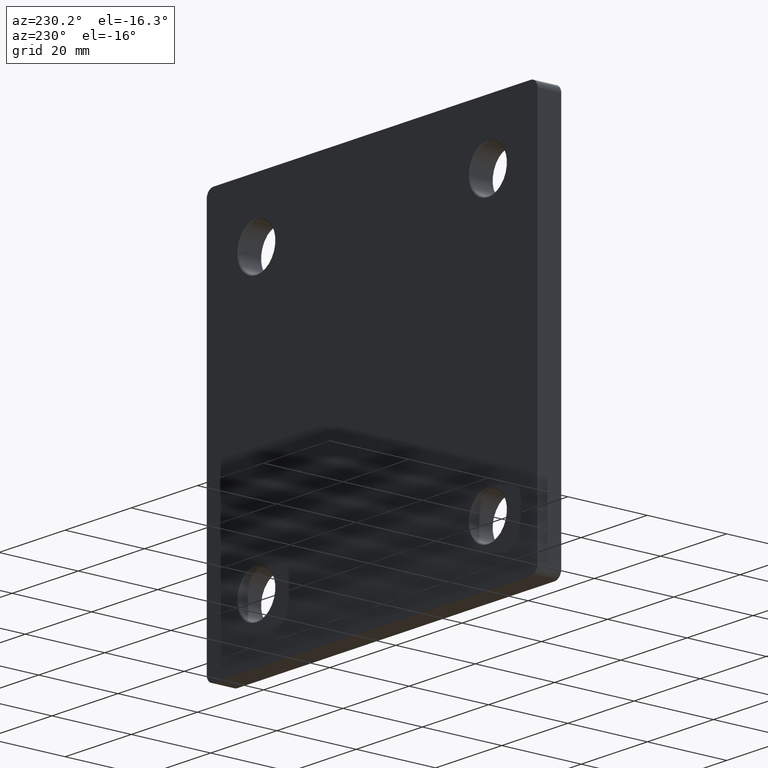
[diagram: clean part render]
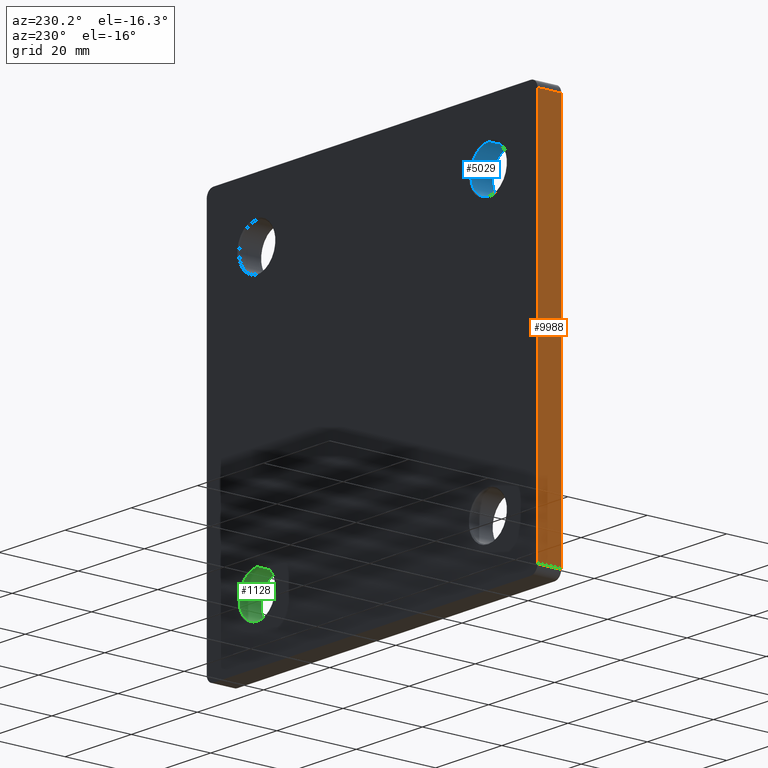
[diagram: same view with three faces highlighted in distinct colors, each labeled with its STEP entity id]
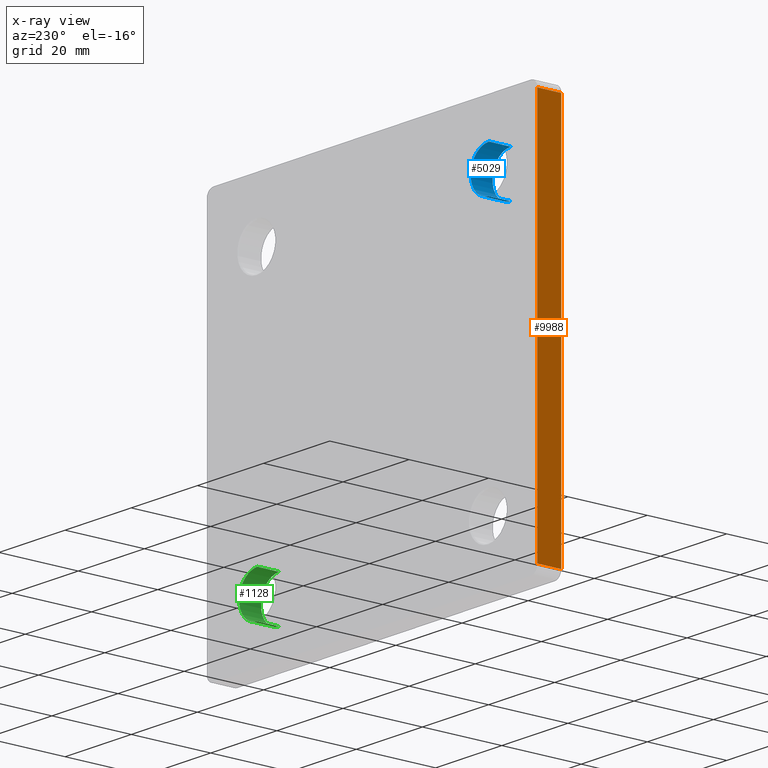
[diagram: x-ray of the same camera — body ghosted, the three highlighted faces saturated]
A machine part, auxiliary view with three faces highlighted in distinct colors.
The next image is the same camera in x-ray (body ghosted, the three faces saturated) — at least one of them is partly hidden behind the body in this view.
Their STEP definitions:

[orange] entity #9988 — the highlighted planar face has unit normal (1, 0, -0).
#30 = ORIENTED_EDGE ( 'NONE', *, *, #9757, .T. ) ;
#650 = CARTESIAN_POINT ( 'NONE',  ( -50.00000000000000000, 0.000000000000000000, -49.99999999999998579 ) ) ;
#711 = CARTESIAN_POINT ( 'NONE',  ( -50.00000000000000000, 6.000000000000000000, -47.99999999999998579 ) ) ;
#774 = EDGE_CURVE ( 'NONE', #8219, #3320, #5610, .T. ) ;
#883 = CARTESIAN_POINT ( 'NONE',  ( -50.00000000000000000, 6.000000000000000000, -49.99999999999998579 ) ) ;
#920 = AXIS2_PLACEMENT_3D ( 'NONE', #883, #7146, #8029 ) ;
#1130 = CARTESIAN_POINT ( 'NONE',  ( -49.99999999999998579, 6.000000000000000000, 48.00000000000001421 ) ) ;
#1136 = CARTESIAN_POINT ( 'NONE',  ( -50.00000000000000000, 6.000000000000000000, -47.99999999999998579 ) ) ;
#1321 = LINE ( 'NONE', #2989, #10551 ) ;
#2206 = ORIENTED_EDGE ( 'NONE', *, *, #2766, .F. ) ;
#2766 = EDGE_CURVE ( 'NONE', #8219, #8316, #6720, .T. ) ;
#2989 = CARTESIAN_POINT ( 'NONE',  ( -49.99999999999998579, 6.000000000000000000, 48.00000000000001421 ) ) ;
#3072 = DIRECTION ( 'NONE',  ( -0.000000000000000000, 1.000000000000000000, -0.000000000000000000 ) ) ;
#3320 = VERTEX_POINT ( 'NONE', #7349 ) ;
#3981 = LINE ( 'NONE', #650, #10852 ) ;
#4329 = VERTEX_POINT ( 'NONE', #8104 ) ;
#4588 = PLANE ( 'NONE',  #920 ) ;
#4641 = CARTESIAN_POINT ( 'NONE',  ( -50.00000000000000000, 6.000000000000000000, -49.99999999999998579 ) ) ;
#4895 = VECTOR ( 'NONE', #9186, 1000.000000000000000 ) ;
#5579 = DIRECTION ( 'NONE',  ( 1.387778780781445676E-16, 0.000000000000000000, 1.000000000000000000 ) ) ;
#5610 = LINE ( 'NONE', #1136, #4895 ) ;
#6106 = ORIENTED_EDGE ( 'NONE', *, *, #774, .T. ) ;
#6720 = LINE ( 'NONE', #4641, #9678 ) ;
#7146 = DIRECTION ( 'NONE',  ( 1.000000000000000000, 0.000000000000000000, -1.387778780781445429E-16 ) ) ;
#7349 = CARTESIAN_POINT ( 'NONE',  ( -50.00000000000000000, 0.000000000000000000, -47.99999999999998579 ) ) ;
#7835 = EDGE_CURVE ( 'NONE', #3320, #4329, #3981, .T. ) ;
#8029 = DIRECTION ( 'NONE',  ( -1.387778780781445429E-16, 0.000000000000000000, -1.000000000000000000 ) ) ;
#8104 = CARTESIAN_POINT ( 'NONE',  ( -49.99999999999998579, 0.000000000000000000, 48.00000000000001421 ) ) ;
#8219 = VERTEX_POINT ( 'NONE', #711 ) ;
#8316 = VERTEX_POINT ( 'NONE', #1130 ) ;
#8372 = ORIENTED_EDGE ( 'NONE', *, *, #7835, .T. ) ;
#9186 = DIRECTION ( 'NONE',  ( 0.000000000000000000, -1.000000000000000000, 0.000000000000000000 ) ) ;
#9678 = VECTOR ( 'NONE', #5579, 1000.000000000000000 ) ;
#9757 = EDGE_CURVE ( 'NONE', #4329, #8316, #1321, .T. ) ;
#9988 = ADVANCED_FACE ( 'NONE', ( #10955 ), #4588, .F. ) ;
#10545 = EDGE_LOOP ( 'NONE', ( #2206, #6106, #8372, #30 ) ) ;
#10551 = VECTOR ( 'NONE', #3072, 1000.000000000000000 ) ;
#10573 = DIRECTION ( 'NONE',  ( 1.387778780781445676E-16, 0.000000000000000000, 1.000000000000000000 ) ) ;
#10852 = VECTOR ( 'NONE', #10573, 1000.000000000000000 ) ;
#10955 = FACE_OUTER_BOUND ( 'NONE', #10545, .T. ) ;

[blue] entity #5029 — the highlighted cylindrical surface (edge-blend (fillet) strip) has radius 5.5 mm, axis along (-0, 1, -0).
#157 = CARTESIAN_POINT ( 'NONE',  ( -35.00000000000000000, 0.2499999999999872047, 29.50000000000000711 ) ) ;
#925 = CARTESIAN_POINT ( 'NONE',  ( -35.00000000000000000, 0.000000000000000000, 40.50000000000000000 ) ) ;
#977 = CARTESIAN_POINT ( 'NONE',  ( -35.00000000000000000, 5.749999999999999112, 35.00000000000000000 ) ) ;
#1243 = CYLINDRICAL_SURFACE ( 'NONE', #1698, 5.499999999999998224 ) ;
#1558 = DIRECTION ( 'NONE',  ( -0.000000000000000000, 1.000000000000000000, -0.000000000000000000 ) ) ;
#1698 = AXIS2_PLACEMENT_3D ( 'NONE', #7764, #1558, #4969 ) ;
#1923 = ORIENTED_EDGE ( 'NONE', *, *, #4749, .T. ) ;
#2142 = LINE ( 'NONE', #4739, #11339 ) ;
#2247 = VECTOR ( 'NONE', #7266, 1000.000000000000000 ) ;
#2659 = DIRECTION ( 'NONE',  ( 0.000000000000000000, 0.000000000000000000, 1.000000000000000000 ) ) ;
#2923 = LINE ( 'NONE', #925, #2247 ) ;
#3408 = EDGE_LOOP ( 'NONE', ( #6370, #8304, #5858, #1923 ) ) ;
#3729 = CIRCLE ( 'NONE', #3837, 5.499999999999998224 ) ;
#3837 = AXIS2_PLACEMENT_3D ( 'NONE', #977, #8051, #2659 ) ;
#4009 = EDGE_CURVE ( 'NONE', #9584, #5014, #2923, .T. ) ;
#4142 = CARTESIAN_POINT ( 'NONE',  ( -35.00000000000000000, 0.2499999999999872047, 35.00000000000000000 ) ) ;
#4174 = VERTEX_POINT ( 'NONE', #11189 ) ;
#4182 = CARTESIAN_POINT ( 'NONE',  ( -35.00000000000000000, 5.749999999999999112, 40.50000000000000000 ) ) ;
#4223 = DIRECTION ( 'NONE',  ( 0.000000000000000000, 0.000000000000000000, 1.000000000000000000 ) ) ;
#4427 = AXIS2_PLACEMENT_3D ( 'NONE', #4142, #9615, #4223 ) ;
#4739 = CARTESIAN_POINT ( 'NONE',  ( -35.00000000000000000, 0.000000000000000000, 29.50000000000000711 ) ) ;
#4749 = EDGE_CURVE ( 'NONE', #5014, #4174, #3729, .T. ) ;
#4969 = DIRECTION ( 'NONE',  ( 0.000000000000000000, 0.000000000000000000, 1.000000000000000000 ) ) ;
#5014 = VERTEX_POINT ( 'NONE', #4182 ) ;
#5029 = ADVANCED_FACE ( 'NONE', ( #7810 ), #1243, .F. ) ;
#5165 = EDGE_CURVE ( 'NONE', #5356, #9584, #8090, .T. ) ;
#5356 = VERTEX_POINT ( 'NONE', #157 ) ;
#5858 = ORIENTED_EDGE ( 'NONE', *, *, #4009, .T. ) ;
#6370 = ORIENTED_EDGE ( 'NONE', *, *, #11427, .F. ) ;
#6425 = DIRECTION ( 'NONE',  ( -0.000000000000000000, 1.000000000000000000, -0.000000000000000000 ) ) ;
#6492 = CARTESIAN_POINT ( 'NONE',  ( -35.00000000000000000, 0.2499999999999872047, 40.50000000000000000 ) ) ;
#7266 = DIRECTION ( 'NONE',  ( -0.000000000000000000, 1.000000000000000000, -0.000000000000000000 ) ) ;
#7764 = CARTESIAN_POINT ( 'NONE',  ( -35.00000000000000000, 0.000000000000000000, 35.00000000000000000 ) ) ;
#7810 = FACE_OUTER_BOUND ( 'NONE', #3408, .T. ) ;
#8051 = DIRECTION ( 'NONE',  ( 0.000000000000000000, 1.000000000000000000, 0.000000000000000000 ) ) ;
#8090 = CIRCLE ( 'NONE', #4427, 5.499999999999998224 ) ;
#8304 = ORIENTED_EDGE ( 'NONE', *, *, #5165, .T. ) ;
#9584 = VERTEX_POINT ( 'NONE', #6492 ) ;
#9615 = DIRECTION ( 'NONE',  ( -0.000000000000000000, -1.000000000000000000, -0.000000000000000000 ) ) ;
#11189 = CARTESIAN_POINT ( 'NONE',  ( -35.00000000000000000, 5.749999999999999112, 29.50000000000000711 ) ) ;
#11339 = VECTOR ( 'NONE', #6425, 1000.000000000000000 ) ;
#11427 = EDGE_CURVE ( 'NONE', #5356, #4174, #2142, .T. ) ;

[green] entity #1128 — the highlighted cylindrical surface (edge-blend (fillet) strip) has radius 5.5 mm, axis along (-0, 1, -0).
#179 = VECTOR ( 'NONE', #2919, 1000.000000000000000 ) ;
#584 = DIRECTION ( 'NONE',  ( 0.000000000000000000, 0.000000000000000000, 1.000000000000000000 ) ) ;
#686 = EDGE_CURVE ( 'NONE', #6351, #3579, #6750, .T. ) ;
#1128 = ADVANCED_FACE ( 'NONE', ( #1278 ), #7426, .F. ) ;
#1263 = DIRECTION ( 'NONE',  ( -0.000000000000000000, 1.000000000000000000, -0.000000000000000000 ) ) ;
#1278 = FACE_OUTER_BOUND ( 'NONE', #3013, .T. ) ;
#1423 = EDGE_CURVE ( 'NONE', #6351, #1708, #6026, .T. ) ;
#1708 = VERTEX_POINT ( 'NONE', #7225 ) ;
#2812 = CARTESIAN_POINT ( 'NONE',  ( 35.00000000000000000, 0.2499999999999872047, -40.50000000000000000 ) ) ;
#2919 = DIRECTION ( 'NONE',  ( -0.000000000000000000, 1.000000000000000000, -0.000000000000000000 ) ) ;
#3013 = EDGE_LOOP ( 'NONE', ( #8305, #3607, #6511, #11558 ) ) ;
#3579 = VERTEX_POINT ( 'NONE', #5854 ) ;
#3607 = ORIENTED_EDGE ( 'NONE', *, *, #1423, .T. ) ;
#3863 = CIRCLE ( 'NONE', #7691, 5.499999999999994671 ) ;
#4479 = VERTEX_POINT ( 'NONE', #4698 ) ;
#4698 = CARTESIAN_POINT ( 'NONE',  ( 35.00000000000000000, 5.749999999999999112, -29.50000000000000711 ) ) ;
#4761 = CARTESIAN_POINT ( 'NONE',  ( 35.00000000000000000, 0.2499999999999872047, -35.00000000000000000 ) ) ;
#5058 = EDGE_CURVE ( 'NONE', #4479, #3579, #3863, .T. ) ;
#5376 = LINE ( 'NONE', #7833, #9309 ) ;
#5854 = CARTESIAN_POINT ( 'NONE',  ( 35.00000000000000000, 5.749999999999999112, -40.50000000000000000 ) ) ;
#6026 = CIRCLE ( 'NONE', #10513, 5.499999999999994671 ) ;
#6351 = VERTEX_POINT ( 'NONE', #2812 ) ;
#6511 = ORIENTED_EDGE ( 'NONE', *, *, #8987, .T. ) ;
#6608 = DIRECTION ( 'NONE',  ( 0.000000000000000000, 0.000000000000000000, 1.000000000000000000 ) ) ;
#6750 = LINE ( 'NONE', #8394, #179 ) ;
#7225 = CARTESIAN_POINT ( 'NONE',  ( 35.00000000000000000, 0.2499999999999872047, -29.50000000000000711 ) ) ;
#7426 = CYLINDRICAL_SURFACE ( 'NONE', #9469, 5.499999999999994671 ) ;
#7691 = AXIS2_PLACEMENT_3D ( 'NONE', #8587, #8623, #584 ) ;
#7833 = CARTESIAN_POINT ( 'NONE',  ( 35.00000000000000000, 0.000000000000000000, -29.50000000000000711 ) ) ;
#8305 = ORIENTED_EDGE ( 'NONE', *, *, #686, .F. ) ;
#8394 = CARTESIAN_POINT ( 'NONE',  ( 35.00000000000000000, 0.000000000000000000, -40.50000000000000000 ) ) ;
#8587 = CARTESIAN_POINT ( 'NONE',  ( 35.00000000000000000, 5.749999999999999112, -35.00000000000000000 ) ) ;
#8623 = DIRECTION ( 'NONE',  ( 0.000000000000000000, 1.000000000000000000, 0.000000000000000000 ) ) ;
#8987 = EDGE_CURVE ( 'NONE', #1708, #4479, #5376, .T. ) ;
#9082 = CARTESIAN_POINT ( 'NONE',  ( 35.00000000000000000, 0.000000000000000000, -35.00000000000000000 ) ) ;
#9309 = VECTOR ( 'NONE', #9644, 1000.000000000000000 ) ;
#9469 = AXIS2_PLACEMENT_3D ( 'NONE', #9082, #1263, #11058 ) ;
#9644 = DIRECTION ( 'NONE',  ( -0.000000000000000000, 1.000000000000000000, -0.000000000000000000 ) ) ;
#10513 = AXIS2_PLACEMENT_3D ( 'NONE', #4761, #11085, #6608 ) ;
#11058 = DIRECTION ( 'NONE',  ( 0.000000000000000000, 0.000000000000000000, 1.000000000000000000 ) ) ;
#11085 = DIRECTION ( 'NONE',  ( -0.000000000000000000, -1.000000000000000000, -0.000000000000000000 ) ) ;
#11558 = ORIENTED_EDGE ( 'NONE', *, *, #5058, .T. ) ;